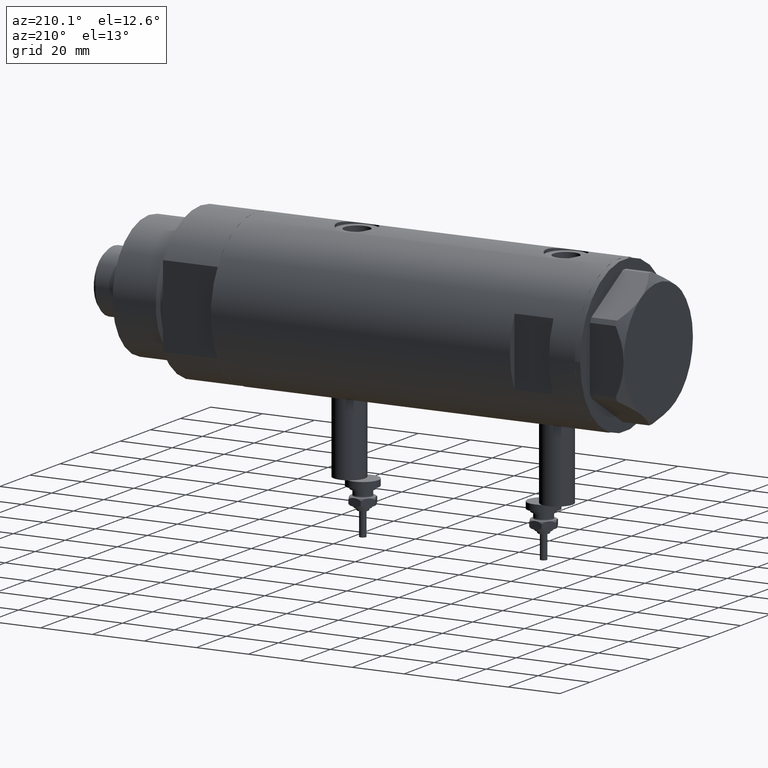
[diagram: clean part render]
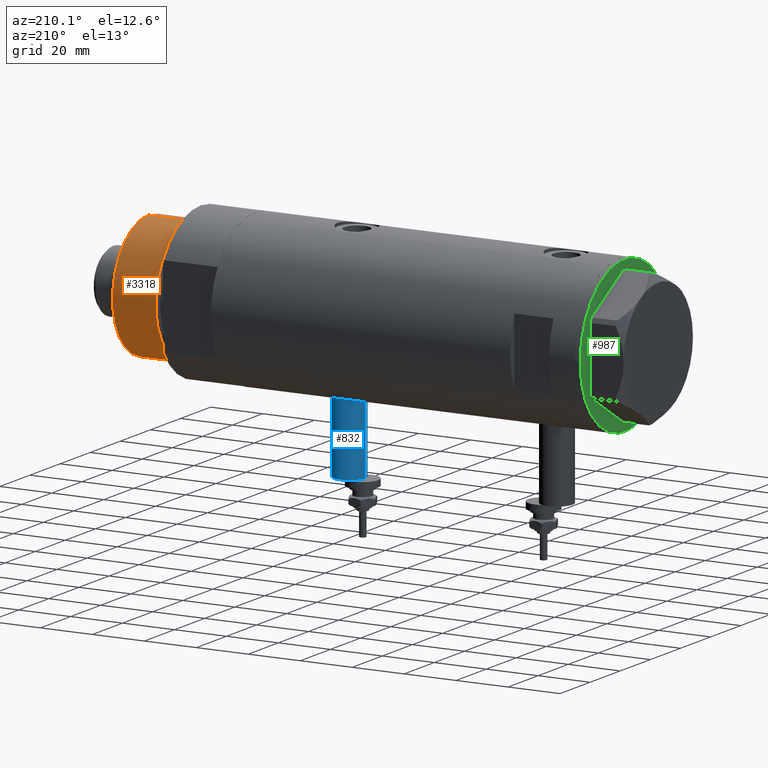
[diagram: same view with three faces highlighted in distinct colors, each labeled with its STEP entity id]
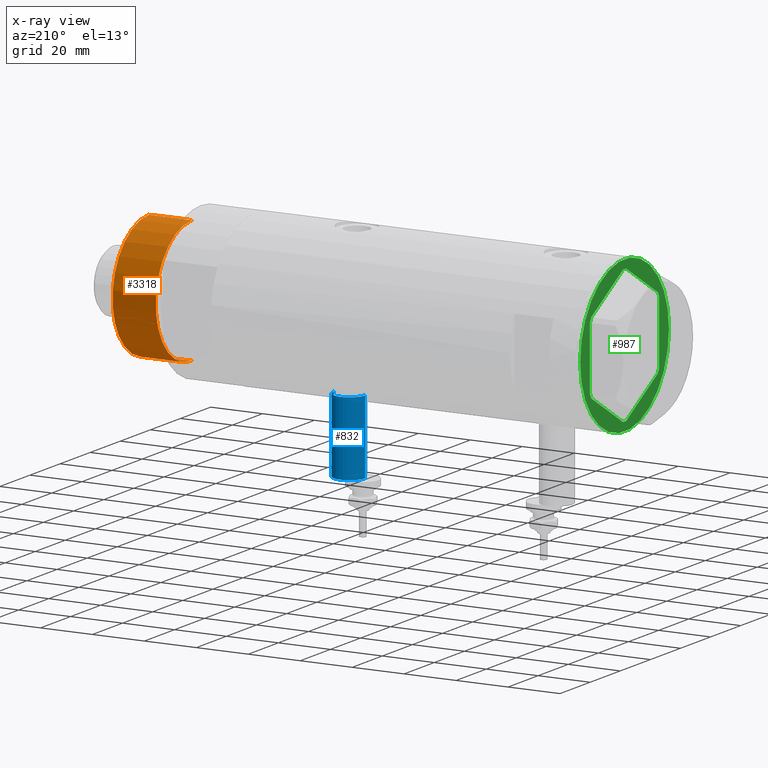
[diagram: x-ray of the same camera — body ghosted, the three highlighted faces saturated]
A machine part, auxiliary view with three faces highlighted in distinct colors.
The next image is the same camera in x-ray (body ghosted, the three faces saturated) — at least one of them is partly hidden behind the body in this view.
Their STEP definitions:

[orange] entity #3318 — the highlighted cylindrical surface (partial cylindrical patch) has radius 24 mm, axis along (-1, -0, 0).
#79 = CARTESIAN_POINT ( 'NONE',  ( -24.00000000000000355, 0.000000000000000000, 41.00000000000000000 ) ) ;
#142 = ORIENTED_EDGE ( 'NONE', *, *, #2767, .T. ) ;
#156 = CARTESIAN_POINT ( 'NONE',  ( 24.00000000000000355, 2.939152317953648289E-15, 24.37384048104054557 ) ) ;
#275 = CARTESIAN_POINT ( 'NONE',  ( -24.00000000000000355, 0.000000000000000000, 24.37384048104054557 ) ) ;
#482 = LINE ( 'NONE', #79, #5396 ) ;
#1238 = ORIENTED_EDGE ( 'NONE', *, *, #2329, .F. ) ;
#1330 = DIRECTION ( 'NONE',  ( -0.000000000000000000, -0.000000000000000000, 1.000000000000000000 ) ) ;
#1531 = EDGE_CURVE ( 'NONE', #4988, #2216, #482, .T. ) ;
#1620 = AXIS2_PLACEMENT_3D ( 'NONE', #3244, #1330, #3180 ) ;
#1808 = VERTEX_POINT ( 'NONE', #156 ) ;
#1884 = AXIS2_PLACEMENT_3D ( 'NONE', #4348, #5730, #2961 ) ;
#2121 = CYLINDRICAL_SURFACE ( 'NONE', #1884, 24.00000000000000355 ) ;
#2133 = ORIENTED_EDGE ( 'NONE', *, *, #1531, .F. ) ;
#2216 = VERTEX_POINT ( 'NONE', #275 ) ;
#2329 = EDGE_CURVE ( 'NONE', #4480, #4988, #3582, .T. ) ;
#2644 = ORIENTED_EDGE ( 'NONE', *, *, #5657, .T. ) ;
#2742 = DIRECTION ( 'NONE',  ( -0.000000000000000000, -0.000000000000000000, -1.000000000000000000 ) ) ;
#2767 = EDGE_CURVE ( 'NONE', #4480, #1808, #4126, .T. ) ;
#2961 = DIRECTION ( 'NONE',  ( -1.000000000000000000, 0.000000000000000000, 0.000000000000000000 ) ) ;
#3180 = DIRECTION ( 'NONE',  ( 1.000000000000000000, 0.000000000000000000, 0.000000000000000000 ) ) ;
#3244 = CARTESIAN_POINT ( 'NONE',  ( 0.000000000000000000, 0.000000000000000000, 24.37384048104054557 ) ) ;
#3318 = ADVANCED_FACE ( 'NONE', ( #3987 ), #2121, .T. ) ;
#3505 = DIRECTION ( 'NONE',  ( 0.000000000000000000, 0.000000000000000000, 1.000000000000000000 ) ) ;
#3582 = CIRCLE ( 'NONE', #4060, 24.00000000000000355 ) ;
#3705 = CARTESIAN_POINT ( 'NONE',  ( -24.00000000000000355, 0.000000000000000000, 41.00000000000000000 ) ) ;
#3706 = DIRECTION ( 'NONE',  ( -0.000000000000000000, -0.000000000000000000, -1.000000000000000000 ) ) ;
#3910 = CIRCLE ( 'NONE', #1620, 24.00000000000000355 ) ;
#3987 = FACE_OUTER_BOUND ( 'NONE', #5707, .T. ) ;
#4060 = AXIS2_PLACEMENT_3D ( 'NONE', #4439, #3505, #4078 ) ;
#4078 = DIRECTION ( 'NONE',  ( 1.000000000000000000, 0.000000000000000000, 0.000000000000000000 ) ) ;
#4126 = LINE ( 'NONE', #5050, #4756 ) ;
#4348 = CARTESIAN_POINT ( 'NONE',  ( 0.000000000000000000, 0.000000000000000000, 41.00000000000000000 ) ) ;
#4439 = CARTESIAN_POINT ( 'NONE',  ( 0.000000000000000000, 0.000000000000000000, 41.00000000000000000 ) ) ;
#4480 = VERTEX_POINT ( 'NONE', #5329 ) ;
#4756 = VECTOR ( 'NONE', #3706, 1000.000000000000000 ) ;
#4988 = VERTEX_POINT ( 'NONE', #3705 ) ;
#5050 = CARTESIAN_POINT ( 'NONE',  ( 24.00000000000000355, 2.939152317953648289E-15, 41.00000000000000000 ) ) ;
#5329 = CARTESIAN_POINT ( 'NONE',  ( 24.00000000000000355, 2.939152317953648289E-15, 41.00000000000000000 ) ) ;
#5396 = VECTOR ( 'NONE', #2742, 1000.000000000000000 ) ;
#5657 = EDGE_CURVE ( 'NONE', #1808, #2216, #3910, .T. ) ;
#5707 = EDGE_LOOP ( 'NONE', ( #1238, #142, #2644, #2133 ) ) ;
#5730 = DIRECTION ( 'NONE',  ( -0.000000000000000000, -0.000000000000000000, -1.000000000000000000 ) ) ;

[blue] entity #832 — the highlighted cylindrical surface (edge-blend (fillet) strip) has radius 6 mm, axis along (0, 0, 1).
#11 = EDGE_CURVE ( 'NONE', #4826, #3626, #4531, .T. ) ;
#18 = VERTEX_POINT ( 'NONE', #1751 ) ;
#122 = CYLINDRICAL_SURFACE ( 'NONE', #3566, 6.000000000000005329 ) ;
#146 = FACE_OUTER_BOUND ( 'NONE', #384, .T. ) ;
#371 = DIRECTION ( 'NONE',  ( 1.000000000000000000, -0.000000000000000000, -0.000000000000000000 ) ) ;
#378 = CARTESIAN_POINT ( 'NONE',  ( -56.60000000000000142, 0.000000000000000000, -39.80000000000000426 ) ) ;
#384 = EDGE_LOOP ( 'NONE', ( #4508, #2390, #4390, #5354 ) ) ;
#466 = AXIS2_PLACEMENT_3D ( 'NONE', #5030, #938, #849 ) ;
#832 = ADVANCED_FACE ( 'NONE', ( #146 ), #122, .T. ) ;
#849 = DIRECTION ( 'NONE',  ( 0.000000000000000000, 0.000000000000000000, 1.000000000000000000 ) ) ;
#853 = EDGE_CURVE ( 'NONE', #18, #2645, #4670, .T. ) ;
#938 = DIRECTION ( 'NONE',  ( -1.000000000000000000, 0.000000000000000000, 0.000000000000000000 ) ) ;
#1507 = CIRCLE ( 'NONE', #3239, 6.000000000000001776 ) ;
#1751 = CARTESIAN_POINT ( 'NONE',  ( -56.60000000000000142, 7.347880794884123680E-16, -27.79999999999999005 ) ) ;
#1838 = VECTOR ( 'NONE', #1937, 1000.000000000000000 ) ;
#1937 = DIRECTION ( 'NONE',  ( 1.000000000000000000, -0.000000000000000000, -0.000000000000000000 ) ) ;
#1963 = DIRECTION ( 'NONE',  ( 1.000000000000000000, -0.000000000000000000, -0.000000000000000000 ) ) ;
#2390 = ORIENTED_EDGE ( 'NONE', *, *, #853, .T. ) ;
#2645 = VERTEX_POINT ( 'NONE', #4270 ) ;
#2686 = VECTOR ( 'NONE', #371, 1000.000000000000000 ) ;
#3239 = AXIS2_PLACEMENT_3D ( 'NONE', #3501, #4914, #4940 ) ;
#3501 = CARTESIAN_POINT ( 'NONE',  ( -28.30000000000000071, 0.000000000000000000, -33.79999999999999716 ) ) ;
#3566 = AXIS2_PLACEMENT_3D ( 'NONE', #4287, #1963, #5127 ) ;
#3626 = VERTEX_POINT ( 'NONE', #5177 ) ;
#4217 = EDGE_CURVE ( 'NONE', #2645, #3626, #1507, .T. ) ;
#4270 = CARTESIAN_POINT ( 'NONE',  ( -28.30000000000000071, 7.347880794884123680E-16, -27.79999999999999005 ) ) ;
#4287 = CARTESIAN_POINT ( 'NONE',  ( -56.60000000000000142, 0.000000000000000000, -33.79999999999999716 ) ) ;
#4390 = ORIENTED_EDGE ( 'NONE', *, *, #4217, .T. ) ;
#4446 = CARTESIAN_POINT ( 'NONE',  ( -56.60000000000000142, 0.000000000000000000, -39.80000000000000426 ) ) ;
#4508 = ORIENTED_EDGE ( 'NONE', *, *, #5728, .F. ) ;
#4531 = LINE ( 'NONE', #4446, #2686 ) ;
#4670 = LINE ( 'NONE', #4765, #1838 ) ;
#4765 = CARTESIAN_POINT ( 'NONE',  ( -56.60000000000000142, 7.347880794884122694E-16, -27.79999999999999361 ) ) ;
#4768 = CIRCLE ( 'NONE', #466, 6.000000000000001776 ) ;
#4826 = VERTEX_POINT ( 'NONE', #378 ) ;
#4914 = DIRECTION ( 'NONE',  ( -1.000000000000000000, 0.000000000000000000, 0.000000000000000000 ) ) ;
#4940 = DIRECTION ( 'NONE',  ( 0.000000000000000000, 0.000000000000000000, 1.000000000000000000 ) ) ;
#5030 = CARTESIAN_POINT ( 'NONE',  ( -56.60000000000000142, 0.000000000000000000, -33.79999999999999716 ) ) ;
#5127 = DIRECTION ( 'NONE',  ( 0.000000000000000000, 0.000000000000000000, -1.000000000000000000 ) ) ;
#5177 = CARTESIAN_POINT ( 'NONE',  ( -28.30000000000000071, 0.000000000000000000, -39.80000000000000426 ) ) ;
#5354 = ORIENTED_EDGE ( 'NONE', *, *, #11, .F. ) ;
#5728 = EDGE_CURVE ( 'NONE', #18, #4826, #4768, .T. ) ;

[green] entity #987 — the highlighted planar face has unit normal (1, 0, -0).
#6 = LINE ( 'NONE', #5532, #5723 ) ;
#49 = FACE_BOUND ( 'NONE', #2071, .T. ) ;
#76 = VECTOR ( 'NONE', #973, 1000.000000000000000 ) ;
#109 = LINE ( 'NONE', #3720, #3335 ) ;
#127 = ORIENTED_EDGE ( 'NONE', *, *, #5645, .T. ) ;
#300 = CARTESIAN_POINT ( 'NONE',  ( 1.854543075583504180E-13, -26.55811238272274366, 0.000000000000000000 ) ) ;
#351 = CARTESIAN_POINT ( 'NONE',  ( 1.859873512960652550E-13, -25.99811238272274139, 0.000000000000000000 ) ) ;
#360 = LINE ( 'NONE', #300, #1759 ) ;
#362 = CIRCLE ( 'NONE', #4481, 29.50000000000000355 ) ;
#391 = LINE ( 'NONE', #5494, #1801 ) ;
#440 = ORIENTED_EDGE ( 'NONE', *, *, #3286, .F. ) ;
#495 = CARTESIAN_POINT ( 'NONE',  ( 0.000000000000000000, 0.000000000000000000, 0.000000000000000000 ) ) ;
#517 = LINE ( 'NONE', #3700, #2129 ) ;
#554 = CARTESIAN_POINT ( 'NONE',  ( 0.9699484522387533669, -25.99811238272273428, 0.000000000000000000 ) ) ;
#632 = CARTESIAN_POINT ( 'NONE',  ( 29.50000000000000355, 0.000000000000000000, 0.000000000000000000 ) ) ;
#678 = ORIENTED_EDGE ( 'NONE', *, *, #1465, .F. ) ;
#763 = LINE ( 'NONE', #5898, #1477 ) ;
#888 = CARTESIAN_POINT ( 'NONE',  ( -0.9699484522385893870, 25.99811238272273073, 0.000000000000000000 ) ) ;
#973 = DIRECTION ( 'NONE',  ( 0.8660254037844415942, -0.4999999999999950595, 0.000000000000000000 ) ) ;
#987 = ADVANCED_FACE ( 'NONE', ( #49, #2379 ), #2463, .F. ) ;
#999 = DIRECTION ( 'NONE',  ( -0.8660254037844415942, 0.4999999999999949485, 0.000000000000000000 ) ) ;
#1039 = VERTEX_POINT ( 'NONE', #4663 ) ;
#1056 = CARTESIAN_POINT ( 'NONE',  ( -22.51502577388055215, -12.99905619136159629, 0.000000000000000000 ) ) ;
#1270 = CARTESIAN_POINT ( 'NONE',  ( 0.000000000000000000, 0.000000000000000000, 0.000000000000000000 ) ) ;
#1304 = LINE ( 'NONE', #2260, #76 ) ;
#1308 = DIRECTION ( 'NONE',  ( 0.8660254037844345998, 0.5000000000000069944, 0.000000000000000000 ) ) ;
#1388 = EDGE_CURVE ( 'NONE', #1695, #5622, #360, .T. ) ;
#1465 = EDGE_CURVE ( 'NONE', #1478, #5378, #4437, .T. ) ;
#1477 = VECTOR ( 'NONE', #2562, 1000.000000000000000 ) ;
#1478 = VERTEX_POINT ( 'NONE', #888 ) ;
#1564 = VECTOR ( 'NONE', #3988, 1000.000000000000227 ) ;
#1689 = CARTESIAN_POINT ( 'NONE',  ( 23.00000000000007461, -12.15905619136117721, 0.000000000000000000 ) ) ;
#1695 = VERTEX_POINT ( 'NONE', #554 ) ;
#1715 = VECTOR ( 'NONE', #3776, 1000.000000000000000 ) ;
#1734 = EDGE_CURVE ( 'NONE', #1039, #5500, #2322, .T. ) ;
#1759 = VECTOR ( 'NONE', #1308, 999.9999999999998863 ) ;
#1801 = VECTOR ( 'NONE', #5001, 1000.000000000000227 ) ;
#1807 = EDGE_CURVE ( 'NONE', #3803, #5202, #2533, .T. ) ;
#1812 = EDGE_CURVE ( 'NONE', #1478, #4089, #2999, .T. ) ;
#1860 = ORIENTED_EDGE ( 'NONE', *, *, #1812, .T. ) ;
#1914 = VERTEX_POINT ( 'NONE', #5348 ) ;
#2071 = EDGE_LOOP ( 'NONE', ( #5084, #4195, #2768, #2198, #3694, #4744, #4405, #3488, #2868, #127, #678, #1860 ) ) ;
#2116 = EDGE_CURVE ( 'NONE', #3803, #5622, #517, .T. ) ;
#2129 = VECTOR ( 'NONE', #4176, 1000.000000000000000 ) ;
#2198 = ORIENTED_EDGE ( 'NONE', *, *, #2116, .T. ) ;
#2260 = CARTESIAN_POINT ( 'NONE',  ( -22.99999999999990408, -13.27905619136147841, 0.000000000000000000 ) ) ;
#2322 = CIRCLE ( 'NONE', #3962, 29.50000000000000355 ) ;
#2346 = EDGE_CURVE ( 'NONE', #2939, #4934, #763, .T. ) ;
#2379 = FACE_OUTER_BOUND ( 'NONE', #3148, .T. ) ;
#2406 = CARTESIAN_POINT ( 'NONE',  ( 0.000000000000000000, 0.000000000000000000, 0.000000000000000000 ) ) ;
#2463 = PLANE ( 'NONE',  #4523 ) ;
#2477 = CARTESIAN_POINT ( 'NONE',  ( 23.00000000000008527, -13.27905619136115867, 0.000000000000000000 ) ) ;
#2533 = LINE ( 'NONE', #2477, #4158 ) ;
#2549 = LINE ( 'NONE', #351, #4186 ) ;
#2562 = DIRECTION ( 'NONE',  ( 3.527173405730720141E-15, -1.000000000000000000, 0.000000000000000000 ) ) ;
#2590 = DIRECTION ( 'NONE',  ( 0.000000000000000000, 0.000000000000000000, -1.000000000000000000 ) ) ;
#2720 = DIRECTION ( 'NONE',  ( 0.5000000000000086597, -0.8660254037844337116, -0.000000000000000000 ) ) ;
#2722 = VERTEX_POINT ( 'NONE', #5626 ) ;
#2768 = ORIENTED_EDGE ( 'NONE', *, *, #1807, .F. ) ;
#2857 = DIRECTION ( 'NONE',  ( 0.000000000000000000, 0.000000000000000000, -1.000000000000000000 ) ) ;
#2868 = ORIENTED_EDGE ( 'NONE', *, *, #2346, .F. ) ;
#2939 = VERTEX_POINT ( 'NONE', #4443 ) ;
#2986 = CARTESIAN_POINT ( 'NONE',  ( 0.9699484522385886098, 25.99811238272273783, 0.000000000000000000 ) ) ;
#2999 = LINE ( 'NONE', #4325, #5303 ) ;
#3046 = ORIENTED_EDGE ( 'NONE', *, *, #1734, .F. ) ;
#3115 = CARTESIAN_POINT ( 'NONE',  ( 22.03005154776153773, -13.83905619136115561, 0.000000000000000000 ) ) ;
#3148 = EDGE_LOOP ( 'NONE', ( #440, #3046 ) ) ;
#3286 = EDGE_CURVE ( 'NONE', #5500, #1039, #362, .T. ) ;
#3294 = LINE ( 'NONE', #1056, #1715 ) ;
#3335 = VECTOR ( 'NONE', #999, 999.9999999999998863 ) ;
#3431 = DIRECTION ( 'NONE',  ( 1.000000000000000000, 3.576939520802682722E-15, -0.000000000000000000 ) ) ;
#3488 = ORIENTED_EDGE ( 'NONE', *, *, #5824, .T. ) ;
#3630 = CARTESIAN_POINT ( 'NONE',  ( -22.03005154776132102, -13.83905619136147536, 0.000000000000000000 ) ) ;
#3694 = ORIENTED_EDGE ( 'NONE', *, *, #1388, .F. ) ;
#3700 = CARTESIAN_POINT ( 'NONE',  ( 22.51502577388080795, -12.99905619136115398, 0.000000000000000000 ) ) ;
#3702 = CARTESIAN_POINT ( 'NONE',  ( -22.03005154776141339, 13.83905619136132792, 0.000000000000000000 ) ) ;
#3720 = CARTESIAN_POINT ( 'NONE',  ( 22.99999999999981171, 13.27905619136164184, 0.000000000000000000 ) ) ;
#3776 = DIRECTION ( 'NONE',  ( -0.5000000000000086597, 0.8660254037844337116, -0.000000000000000000 ) ) ;
#3803 = VERTEX_POINT ( 'NONE', #1689 ) ;
#3899 = DIRECTION ( 'NONE',  ( -1.000000000000000000, 0.000000000000000000, 0.000000000000000000 ) ) ;
#3962 = AXIS2_PLACEMENT_3D ( 'NONE', #495, #4595, #4159 ) ;
#3988 = DIRECTION ( 'NONE',  ( -0.8660254037844380415, -0.5000000000000008882, 0.000000000000000000 ) ) ;
#4012 = DIRECTION ( 'NONE',  ( -1.000000000000000000, -7.153879041605523216E-15, -0.000000000000000000 ) ) ;
#4069 = CARTESIAN_POINT ( 'NONE',  ( 22.99999999999982236, 12.15905619136166571, 0.000000000000000000 ) ) ;
#4089 = VERTEX_POINT ( 'NONE', #2986 ) ;
#4158 = VECTOR ( 'NONE', #5762, 1000.000000000000000 ) ;
#4159 = DIRECTION ( 'NONE',  ( -1.000000000000000000, 0.000000000000000000, 0.000000000000000000 ) ) ;
#4176 = DIRECTION ( 'NONE',  ( -0.4999999999999915623, -0.8660254037844434816, -0.000000000000000000 ) ) ;
#4186 = VECTOR ( 'NONE', #4012, 1000.000000000000000 ) ;
#4195 = ORIENTED_EDGE ( 'NONE', *, *, #5313, .T. ) ;
#4325 = CARTESIAN_POINT ( 'NONE',  ( -9.299367564803055752E-14, 25.99811238272273428, 0.000000000000000000 ) ) ;
#4405 = ORIENTED_EDGE ( 'NONE', *, *, #5600, .F. ) ;
#4437 = LINE ( 'NONE', #5873, #1564 ) ;
#4443 = CARTESIAN_POINT ( 'NONE',  ( -22.99999999999999289, 12.15905619136131754, 0.000000000000000000 ) ) ;
#4454 = EDGE_CURVE ( 'NONE', #1695, #2722, #2549, .T. ) ;
#4481 = AXIS2_PLACEMENT_3D ( 'NONE', #1270, #2590, #3899 ) ;
#4523 = AXIS2_PLACEMENT_3D ( 'NONE', #2406, #2857, #5153 ) ;
#4566 = CARTESIAN_POINT ( 'NONE',  ( -22.99999999999990763, -12.15905619136148985, 0.000000000000000000 ) ) ;
#4595 = DIRECTION ( 'NONE',  ( 0.000000000000000000, 0.000000000000000000, -1.000000000000000000 ) ) ;
#4663 = CARTESIAN_POINT ( 'NONE',  ( -29.50000000000000355, 3.612708057484692393E-15, 0.000000000000000000 ) ) ;
#4744 = ORIENTED_EDGE ( 'NONE', *, *, #4454, .T. ) ;
#4934 = VERTEX_POINT ( 'NONE', #4566 ) ;
#5001 = DIRECTION ( 'NONE',  ( 0.4999999999999986677, 0.8660254037844392627, -0.000000000000000000 ) ) ;
#5078 = VERTEX_POINT ( 'NONE', #3630 ) ;
#5084 = ORIENTED_EDGE ( 'NONE', *, *, #5783, .F. ) ;
#5153 = DIRECTION ( 'NONE',  ( -1.000000000000000000, 0.000000000000000000, -0.000000000000000000 ) ) ;
#5202 = VERTEX_POINT ( 'NONE', #4069 ) ;
#5303 = VECTOR ( 'NONE', #3431, 1000.000000000000000 ) ;
#5313 = EDGE_CURVE ( 'NONE', #1914, #5202, #6, .T. ) ;
#5348 = CARTESIAN_POINT ( 'NONE',  ( 22.03005154776124996, 13.83905619136162635, 0.000000000000000000 ) ) ;
#5378 = VERTEX_POINT ( 'NONE', #3702 ) ;
#5494 = CARTESIAN_POINT ( 'NONE',  ( -22.51502577388069781, 12.99905619136134050, 0.000000000000000000 ) ) ;
#5500 = VERTEX_POINT ( 'NONE', #632 ) ;
#5532 = CARTESIAN_POINT ( 'NONE',  ( 22.51502577388055926, 12.99905619136160162, 0.000000000000000000 ) ) ;
#5600 = EDGE_CURVE ( 'NONE', #5078, #2722, #1304, .T. ) ;
#5622 = VERTEX_POINT ( 'NONE', #3115 ) ;
#5626 = CARTESIAN_POINT ( 'NONE',  ( -0.9699484522383873264, -25.99811238272275205, 0.000000000000000000 ) ) ;
#5645 = EDGE_CURVE ( 'NONE', #2939, #5378, #391, .T. ) ;
#5723 = VECTOR ( 'NONE', #2720, 999.9999999999998863 ) ;
#5762 = DIRECTION ( 'NONE',  ( -1.032024811306395780E-14, 1.000000000000000000, 0.000000000000000000 ) ) ;
#5783 = EDGE_CURVE ( 'NONE', #1914, #4089, #109, .T. ) ;
#5824 = EDGE_CURVE ( 'NONE', #5078, #4934, #3294, .T. ) ;
#5873 = CARTESIAN_POINT ( 'NONE',  ( 0.000000000000000000, 26.55811238272274366, 0.000000000000000000 ) ) ;
#5898 = CARTESIAN_POINT ( 'NONE',  ( -22.99999999999999645, 13.27905619136132032, 0.000000000000000000 ) ) ;